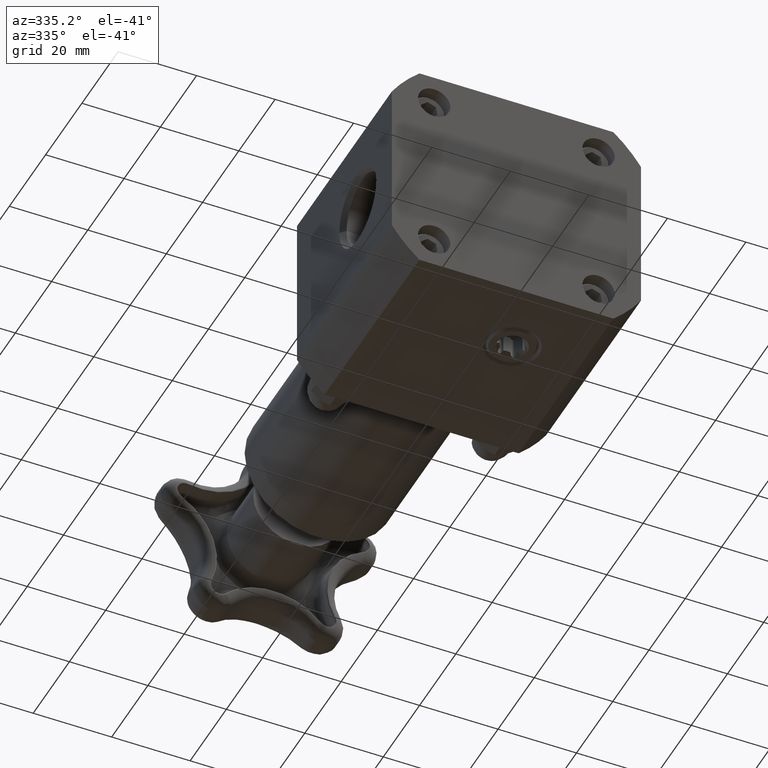
[diagram: clean part render]
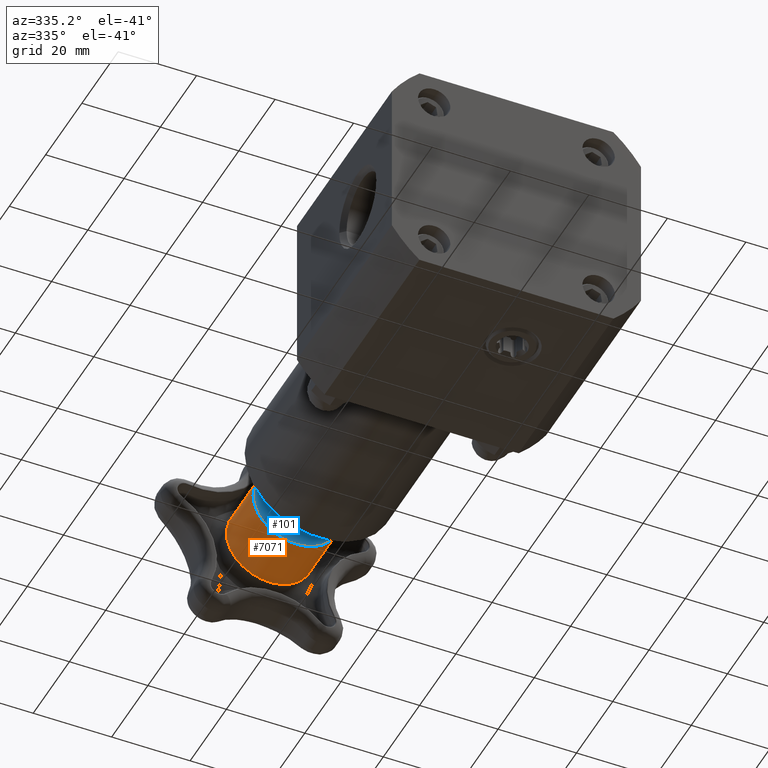
[diagram: same view with the hole feature highlighted: cylindrical wall and planar end face, labeled with their STEP entity ids]
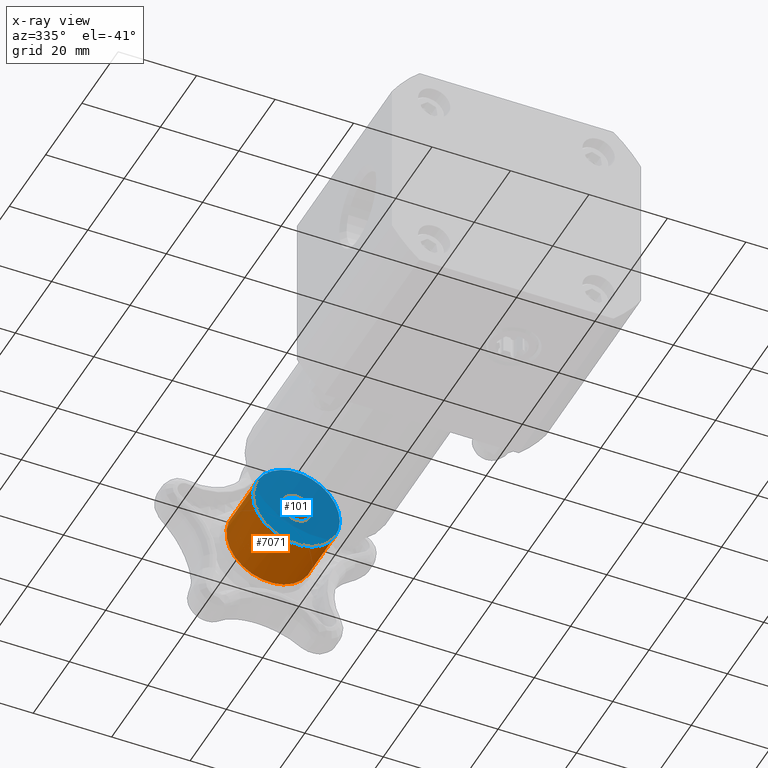
[diagram: x-ray of the same camera — body ghosted, the hole faces saturated]
A machine part, auxiliary view. The highlighted faces form one hole feature of diameter 22.098 mm: the cylindrical wall (entity #7071, orange) and its adjacent planar end face (entity #101, blue) — they share a circular edge in the B-rep.
The next image is the same camera in x-ray (body ghosted, the hole faces saturated) — the bore reads through the body.
Wall:
#79=CARTESIAN_POINT('',(0.435000000000000,4.777500000000001,5.245148E-016));
#80=VERTEX_POINT('',#79);
#81=CARTESIAN_POINT('',(2.277718E-016,4.777500000000001,5.245148E-016));
#82=DIRECTION('',(0.0,-1.0,0.0));
#83=DIRECTION('',(1.0,0.0,0.0));
#84=AXIS2_PLACEMENT_3D('',#81,#82,#83);
#85=CIRCLE('',#84,0.435000000000000);
#86=EDGE_CURVE('',#80,#80,#85,.T.);
#6756=CARTESIAN_POINT('',(0.435000000000000,5.357500000000001,1.535197E-016));
#6757=VERTEX_POINT('',#6756);
#6758=CARTESIAN_POINT('',(2.277718E-016,5.357500000000001,5.245148E-016));
#6759=DIRECTION('',(0.0,1.0,0.0));
#6760=DIRECTION('',(-1.0,0.0,0.0));
#6761=AXIS2_PLACEMENT_3D('',#6758,#6759,#6760);
#6762=CIRCLE('',#6761,0.435000000000000);
#6763=EDGE_CURVE('',#6757,#6757,#6762,.T.);
#7060=CARTESIAN_POINT('',(2.277718E-016,5.027500000000000,5.245148E-016));
#7061=DIRECTION('',(2.063892E-049,-1.0,2.022910E-033));
#7062=DIRECTION('',(1.0,0.0,0.0));
#7063=AXIS2_PLACEMENT_3D('',#7060,#7061,#7062);
#7064=CYLINDRICAL_SURFACE('',#7063,0.435000000000000);
#7065=ORIENTED_EDGE('',*,*,#86,.F.);
#7066=EDGE_LOOP('',(#7065));
#7067=FACE_OUTER_BOUND('',#7066,.T.);
#7068=ORIENTED_EDGE('',*,*,#6763,.F.);
#7069=EDGE_LOOP('',(#7068));
#7070=FACE_BOUND('',#7069,.T.);
#7071=ADVANCED_FACE('',(#7067,#7070),#7064,.T.);
End face:
#74=CARTESIAN_POINT('',(2.277718E-016,4.777500000000001,5.245148E-016));
#75=DIRECTION('',(0.0,1.0,0.0));
#76=DIRECTION('',(0.0,0.0,1.0));
#77=AXIS2_PLACEMENT_3D('',#74,#75,#76);
#78=PLANE('',#77);
#79=CARTESIAN_POINT('',(0.435000000000000,4.777500000000001,5.245148E-016));
#80=VERTEX_POINT('',#79);
#81=CARTESIAN_POINT('',(2.277718E-016,4.777500000000001,5.245148E-016));
#82=DIRECTION('',(0.0,-1.0,0.0));
#83=DIRECTION('',(1.0,0.0,0.0));
#84=AXIS2_PLACEMENT_3D('',#81,#82,#83);
#85=CIRCLE('',#84,0.435000000000000);
#86=EDGE_CURVE('',#80,#80,#85,.T.);
#87=ORIENTED_EDGE('',*,*,#86,.T.);
#88=EDGE_LOOP('',(#87));
#89=FACE_OUTER_BOUND('',#88,.T.);
#90=CARTESIAN_POINT('',(-0.146500000000000,4.777500000000001,5.424559E-016));
#91=VERTEX_POINT('',#90);
#92=CARTESIAN_POINT('',(2.044372E-016,4.777500000000001,5.245148E-016));
#93=DIRECTION('',(0.0,1.0,0.0));
#94=DIRECTION('',(1.0,0.0,0.0));
#95=AXIS2_PLACEMENT_3D('',#92,#93,#94);
#96=CIRCLE('',#95,0.146500000000000);
#97=EDGE_CURVE('',#91,#91,#96,.T.);
#98=ORIENTED_EDGE('',*,*,#97,.T.);
#99=EDGE_LOOP('',(#98));
#100=FACE_BOUND('',#99,.T.);
#101=ADVANCED_FACE('',(#89,#100),#78,.F.);